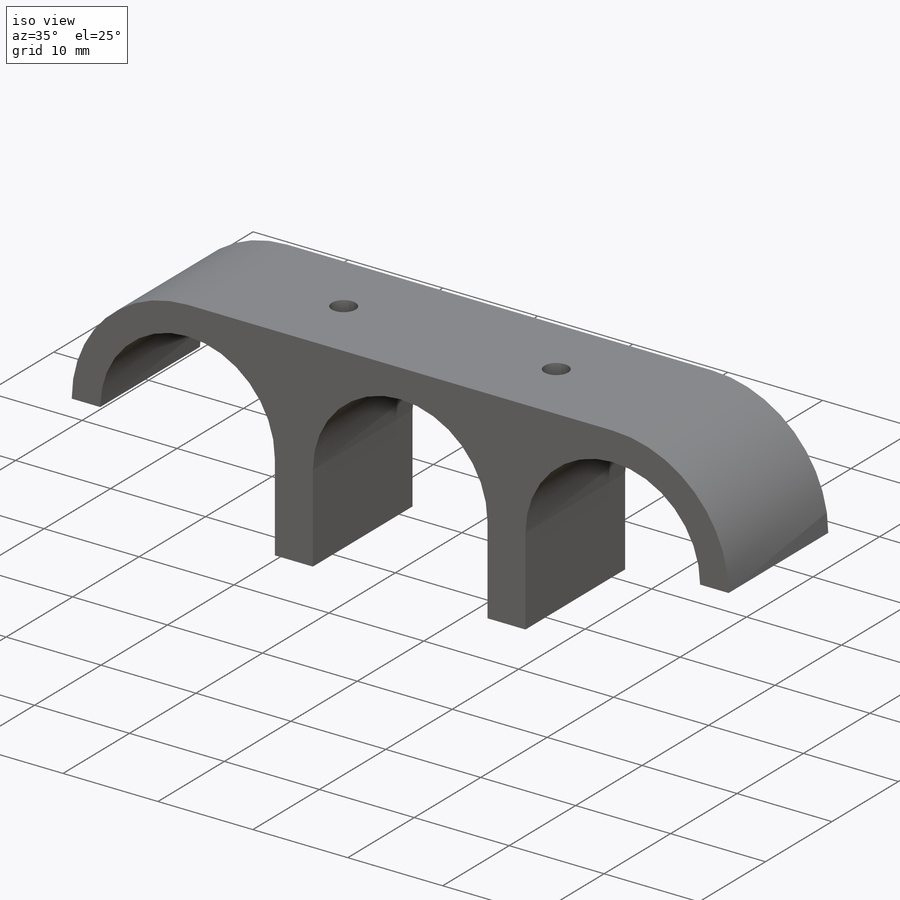
[diagram: iso view]
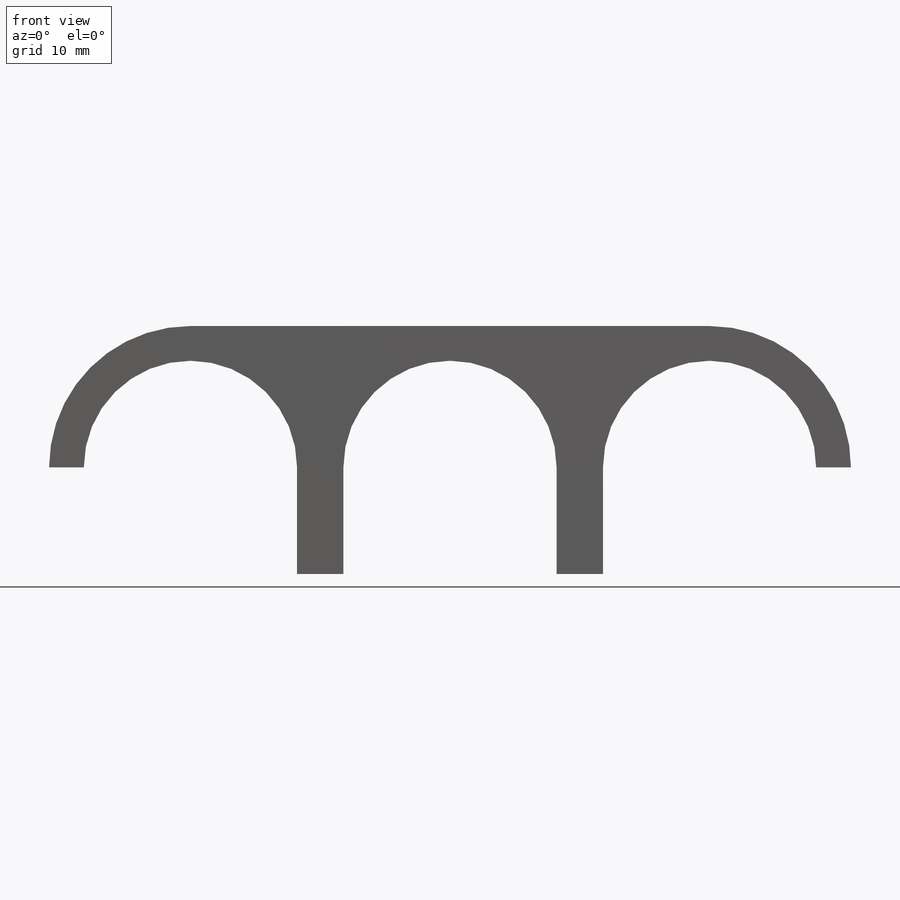
[diagram: front view]
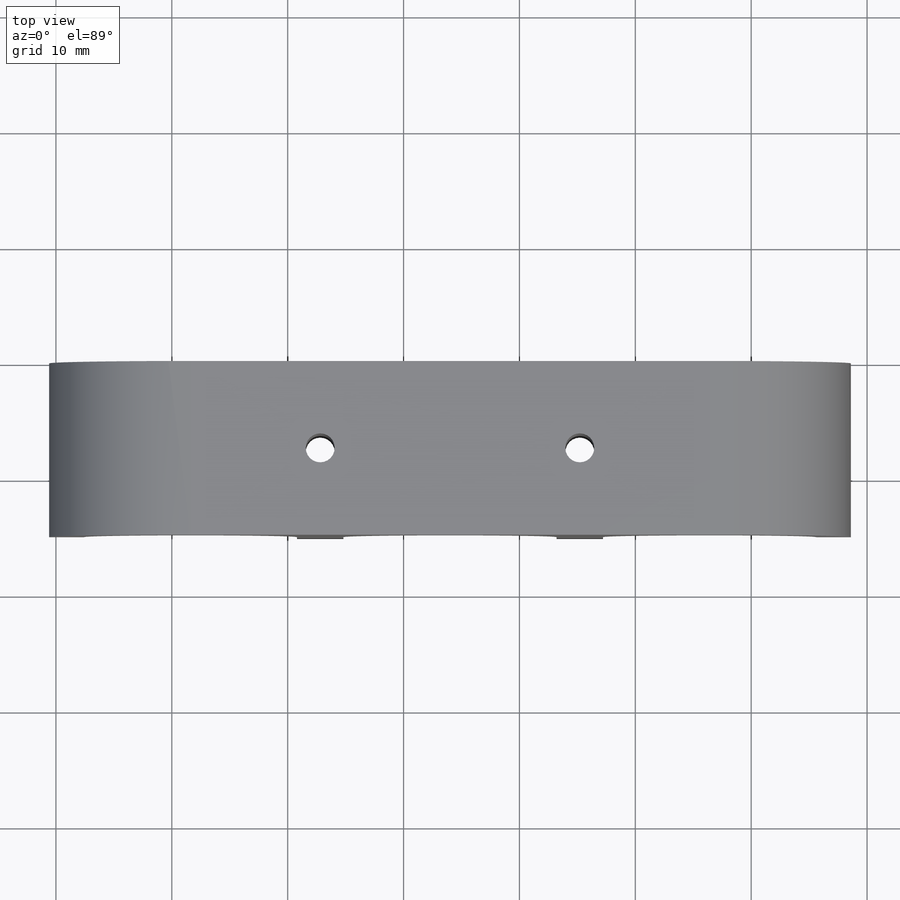
[diagram: top view]
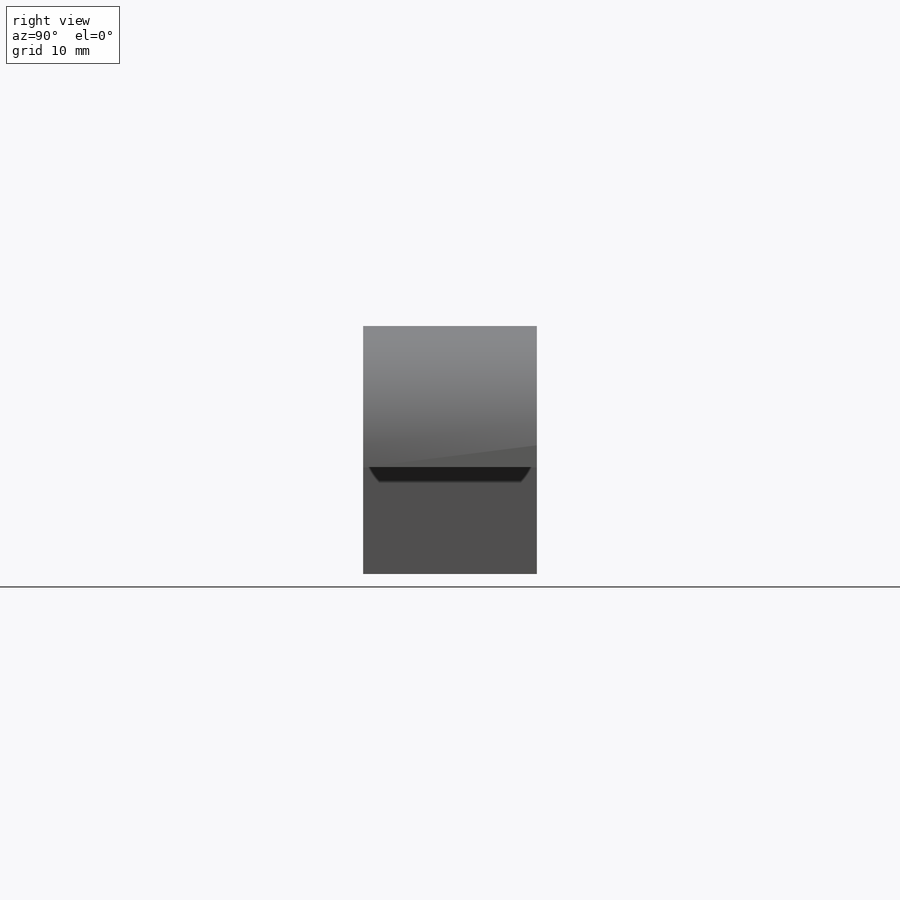
[diagram: right view]
SOLIDWORKS PART (.sldprt)
format: sldprt  version: not decoded by parser v0  size: 246,272 bytes
history: native  units: mm
features: sketch x3, material x1, extrude x1, hole x1 (+13 scaffold rows collapsed)
feature tree (19):
  scaffold x13  (default folders/planes/origin — collapsed)
  material  "Aluminum"
  sketch  "Sketch1"  dims[c1.D1=18.4mm c1.D2=18.4mm c1.D6=18.4mm c1.D3=4.5mm c1.D5=4.5mm c2.D3=9.2mm c2.D5=9.2mm c2.D7=4.0mm c2.D8=3.0mm c2.D4=3.0mm c3.D7=1.0mm]
  extrude  "Boss-Extrude1"  Depth=15mm
  hole  "Tap Drill for M3x0.5 Tap1"  Diameter=2.5mm Depth=21.4mm
  sketch  "Sketch3"  dims[D1=2.0mm D2=2.0mm D3=7.5mm]
  sketch  "Sketch2"  dims[hole-wizard template sketch: 60 standard entries collapsed; hole parameters kept: c18.Thru Hole Depth=21.4mm]
decode coverage: 5 of 5 modeling features carry decoded parameters
note: ~ marks probable driven/reference dimensions
note: suppression state not decoded; provenance and decode notes live in map.json
